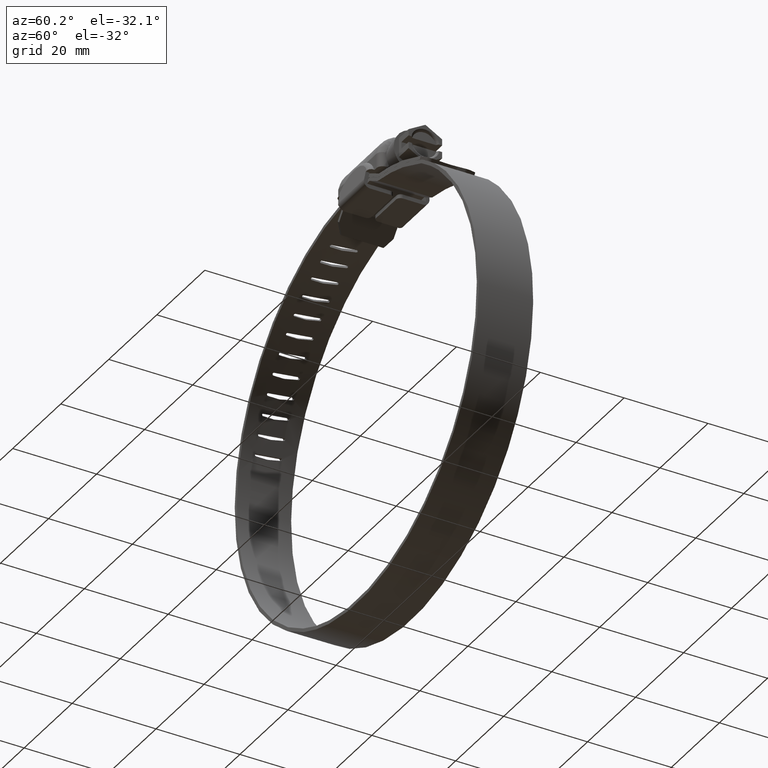
[diagram: clean part render]
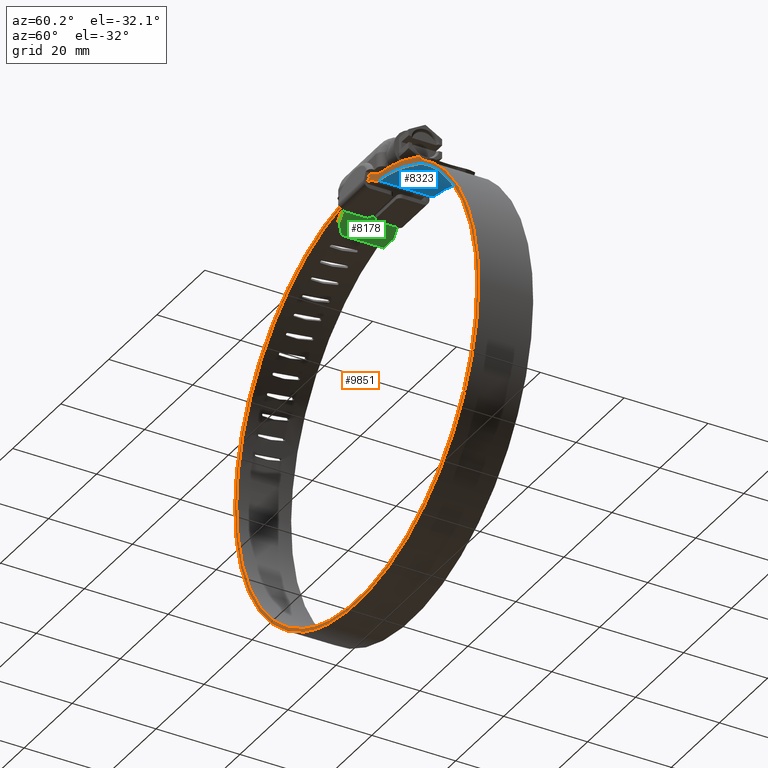
[diagram: same view with three faces highlighted in distinct colors, each labeled with its STEP entity id]
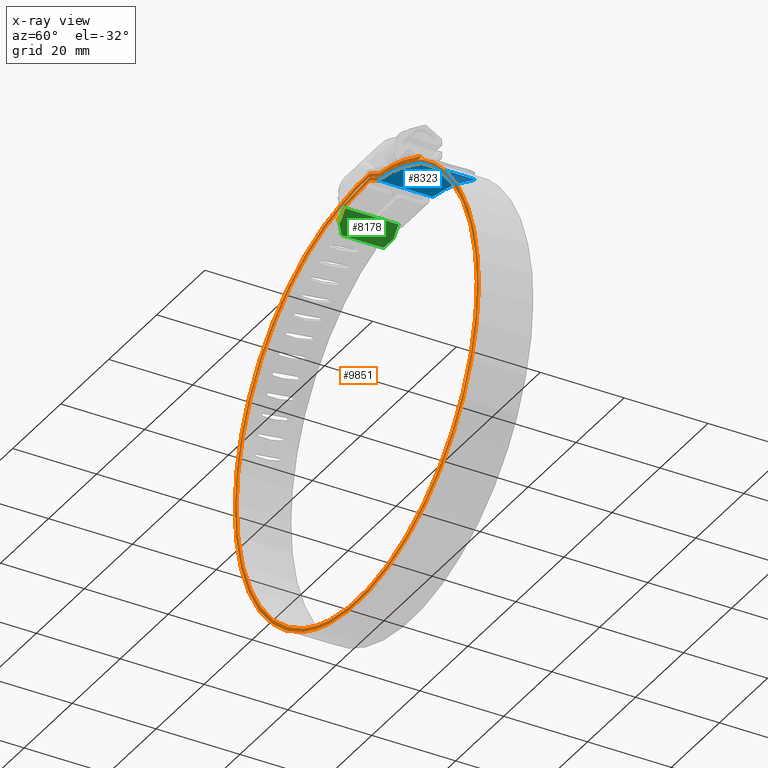
[diagram: x-ray of the same camera — body ghosted, the three highlighted faces saturated]
A machine part, auxiliary view with three faces highlighted in distinct colors.
The next image is the same camera in x-ray (body ghosted, the three faces saturated) — at least one of them is partly hidden behind the body in this view.
Their STEP definitions:

[orange] entity #9851 — the highlighted face is a freeform B-spline surface patch.
#7268=CARTESIAN_POINT('',(-7.334361322686360,-6.499999999999890,7.958638598955481));
#7269=VERTEX_POINT('',#7268);
#7277=CARTESIAN_POINT('',(-7.943454736817850,-6.499999999999890,8.477295723520120));
#7278=VERTEX_POINT('',#7277);
#7279=CARTESIAN_POINT('',(-7.943454736817850,-6.499999999999890,8.477295723520120));
#7280=CARTESIAN_POINT('',(-7.334361322686360,-6.499999999999890,7.958638598955481));
#7281=QUASI_UNIFORM_CURVE('',1,(#7279,#7280),.UNSPECIFIED.,.F.,.U.);
#7282=EDGE_CURVE('',#7278,#7269,#7281,.T.);
#7325=CARTESIAN_POINT('',(-5.356550883366190,-6.499999999999840,11.355693600394540));
#7326=VERTEX_POINT('',#7325);
#7327=CARTESIAN_POINT('',(-11.433543745048580,-6.499999999999840,-87.031741546934754));
#7328=VERTEX_POINT('',#7327);
#7329=CARTESIAN_POINT('',(-5.356550883366190,-6.499999999999840,11.355693600394540));
#7330=CARTESIAN_POINT('',(-8.713882839243222,-6.499999999999856,10.994480264240799));
#7331=CARTESIAN_POINT('',(-13.290419370575821,-6.499999999999813,10.024723035713460));
#7332=CARTESIAN_POINT('',(-19.642979975680412,-6.499999999999867,7.718247064048651));
#7333=CARTESIAN_POINT('',(-23.760786343206320,-6.499999999999805,5.731339592327762));
#7334=CARTESIAN_POINT('',(-28.203433921304921,-6.499999999999908,3.018946326603698));
#7335=CARTESIAN_POINT('',(-31.939426954408159,-6.499999999999972,0.230266680269202));
#7336=CARTESIAN_POINT('',(-35.833673077280800,-6.499999999999576,-3.363217872852138));
#7337=CARTESIAN_POINT('',(-39.103783070472090,-6.499999999999893,-7.059913898733560));
#7338=CARTESIAN_POINT('',(-42.035383023269262,-6.499999999999894,-11.140903212886860));
#7339=CARTESIAN_POINT('',(-44.885271492323959,-6.499999999999843,-16.036955071296099));
#7340=CARTESIAN_POINT('',(-47.223072147377763,-6.499999999999702,-21.506475894605899));
#7341=CARTESIAN_POINT('',(-48.812697499346861,-6.500000000000101,-27.135846062817770));
#7342=CARTESIAN_POINT('',(-49.634844522927217,-6.499999999999472,-31.814862216313319));
#7343=CARTESIAN_POINT('',(-50.075947177619803,-6.500000000001028,-36.910740569534873));
#7344=CARTESIAN_POINT('',(-49.974928940176142,-6.499999999999287,-41.848403097226623));
#7345=CARTESIAN_POINT('',(-49.256429735018699,-6.500000000000410,-47.465617821899592));
#7346=CARTESIAN_POINT('',(-48.019850455095913,-6.499999999998696,-52.717074699740607));
#7347=CARTESIAN_POINT('',(-45.783899562042741,-6.500000000000504,-58.810055474619993));
#7348=CARTESIAN_POINT('',(-42.978064873340919,-6.499999999999480,-64.158455978303195));
#7349=CARTESIAN_POINT('',(-39.541363394989489,-6.499999999998911,-69.113966046490646));
#7350=CARTESIAN_POINT('',(-36.431667670549622,-6.500000000000353,-72.709085378288492));
#7351=CARTESIAN_POINT('',(-32.279922725291037,-6.499999999999685,-76.691721192309146));
#7352=CARTESIAN_POINT('',(-27.905783482012609,-6.499999999999838,-80.014232178508408));
#7353=CARTESIAN_POINT('',(-23.071247118729492,-6.499999999999903,-82.787983159023142));
#7354=CARTESIAN_POINT('',(-17.932236464584939,-6.499999999999787,-85.165541583372246));
#7355=CARTESIAN_POINT('',(-14.098895226928329,-6.500000000000076,-86.405909061444106));
#7356=CARTESIAN_POINT('',(-11.433543745048580,-6.499999999999840,-87.031741546934754));
#7357=B_SPLINE_CURVE_WITH_KNOTS('',3,(#7329,#7330,#7331,#7332,#7333,#7334,#7335,#7336,#7337,#7338,#7339,#7340,#7341,#7342,#7343,#7344,#7345,#7346,#7347,#7348,#7349,#7350,#7351,#7352,#7353,#7354,#7355,#7356),.UNSPECIFIED.,.F.,.U.,(4,1,1,1,1,1,1,1,1,1,1,1,1,1,1,1,1,1,1,1,1,1,1,1,1,4),(0.000000027769460,10.129968230748320,13.962941021158640,20.259998577409799,23.819195817942958,29.568656988016372,34.222986050270833,39.698676335967903,44.353009476555030,49.281129095916100,56.673290040869666,62.148972049878921,66.803336927666990,70.909985302517384,77.480823468240203,81.587547667678081,87.884586800471169,93.634063614031476,101.026246128898190,105.954367145735200,111.703843506642700,115.263036497146700,123.202754198719400,128.130870291556700,131.963878082967200,140.177349242358300),.UNSPECIFIED.);
#7358=EDGE_CURVE('',#7326,#7328,#7357,.T.);
#7360=CARTESIAN_POINT('',(26.929440054028252,-6.499999999999840,3.771885644618750));
#7361=VERTEX_POINT('',#7360);
#7362=CARTESIAN_POINT('',(-11.433543745048580,-6.499999999999840,-87.031741546934754));
#7363=CARTESIAN_POINT('',(-9.301329221831443,-6.499999999999832,-87.532667878385098));
#7364=CARTESIAN_POINT('',(-5.963331921636321,-6.499999999999847,-88.088367932353933));
#7365=CARTESIAN_POINT('',(-0.313044162238781,-6.499999999999885,-88.448852452105726));
#7366=CARTESIAN_POINT('',(5.262393088906730,-6.499999999999631,-88.223895774379429));
#7367=CARTESIAN_POINT('',(11.479092461050140,-6.500000000000235,-87.145517484984069));
#7368=CARTESIAN_POINT('',(16.468696954745820,-6.499999999999448,-85.644462861703374));
#7369=CARTESIAN_POINT('',(21.292294760455441,-6.500000000000089,-83.688170867475165));
#7370=CARTESIAN_POINT('',(25.501433674906501,-6.499999999999820,-81.476134170502647));
#7371=CARTESIAN_POINT('',(30.129697564126580,-6.499999999999695,-78.372957958879724));
#7372=CARTESIAN_POINT('',(33.852405725563003,-6.499999999999935,-75.271101500207280));
#7373=CARTESIAN_POINT('',(37.494627620930352,-6.499999999999762,-71.550946863626308));
#7374=CARTESIAN_POINT('',(40.823817438219017,-6.500000000000228,-67.425664284846889));
#7375=CARTESIAN_POINT('',(43.598055549757262,-6.499999999998841,-63.013102702859278));
#7376=CARTESIAN_POINT('',(46.030562188010137,-6.500000000001399,-58.102930702041029));
#7377=CARTESIAN_POINT('',(48.117135710794152,-6.499999999998905,-52.537482971842387));
#7378=CARTESIAN_POINT('',(49.489415278463127,-6.500000000000198,-46.372864954604552));
#7379=CARTESIAN_POINT('',(50.058442987594290,-6.499999999999773,-40.277410882897847));
#7380=CARTESIAN_POINT('',(49.992182135362960,-6.499999999999844,-35.433019713584990));
#7381=CARTESIAN_POINT('',(49.443260757997933,-6.499999999999840,-30.440031192590020));
#7382=CARTESIAN_POINT('',(48.505380756769192,-6.499999999999838,-25.874050293297820));
#7383=CARTESIAN_POINT('',(46.892465473064327,-6.499999999999846,-20.730757858121919));
#7384=CARTESIAN_POINT('',(45.140506014265092,-6.499999999999830,-16.707143115271599));
#7385=CARTESIAN_POINT('',(42.753064397402213,-6.499999999999862,-12.290167892979611));
#7386=CARTESIAN_POINT('',(40.275100517016142,-6.499999999999819,-8.556116447777963));
#7387=CARTESIAN_POINT('',(37.056083982229467,-6.500000000000065,-4.698608840112781));
#7388=CARTESIAN_POINT('',(32.943901013423492,-6.500000000000711,-0.543920685421595));
#7389=CARTESIAN_POINT('',(29.467148724676711,-6.499999999996029,2.150141382542315));
#7390=CARTESIAN_POINT('',(26.929440054028252,-6.499999999999840,3.771885644618750));
#7391=B_SPLINE_CURVE_WITH_KNOTS('',3,(#7362,#7363,#7364,#7365,#7366,#7367,#7368,#7369,#7370,#7371,#7372,#7373,#7374,#7375,#7376,#7377,#7378,#7379,#7380,#7381,#7382,#7383,#7384,#7385,#7386,#7387,#7388,#7389,#7390),.UNSPECIFIED.,.F.,.U.,(4,1,1,1,1,1,1,1,1,1,1,1,1,1,1,1,1,1,1,1,1,1,1,1,1,1,4),(0.000000027301468,6.570792633065253,10.129968230311221,16.974559990290292,23.271604756816590,29.021082981511871,32.580279641600811,38.877321866898207,43.257876538685757,49.281129095599312,53.387898832690581,58.863543024345013,65.160568328610196,68.993582683635864,75.290507680152601,82.956473136452189,87.884586800281554,93.634063613864555,97.467049223426898,102.942738071042600,107.597073172932500,113.620335346679300,116.084395019503400,122.655215969101800,127.035776719502710,131.142487713344390,140.177349242360210),.UNSPECIFIED.);
#7392=EDGE_CURVE('',#7328,#7361,#7391,.T.);
#7620=CARTESIAN_POINT('',(-5.266920234023621,-6.499999999999840,11.368534438898600));
#7621=VERTEX_POINT('',#7620);
#7622=CARTESIAN_POINT('',(-5.266920234023621,-6.499999999999840,11.368534438898600));
#7623=CARTESIAN_POINT('',(-5.356550883366190,-6.499999999999840,11.355693600394540));
#7624=QUASI_UNIFORM_CURVE('',1,(#7622,#7623),.UNSPECIFIED.,.F.,.U.);
#7625=EDGE_CURVE('',#7621,#7326,#7624,.T.);
#7669=CARTESIAN_POINT('',(-11.606481283638001,-6.499999999999840,-87.812892263029227));
#7670=VERTEX_POINT('',#7669);
#7671=CARTESIAN_POINT('',(27.326681880665799,-6.499999999999840,4.467418103414601));
#7672=VERTEX_POINT('',#7671);
#7673=CARTESIAN_POINT('',(-11.606481283638001,-6.499999999999840,-87.812892263029227));
#7674=CARTESIAN_POINT('',(-9.349312825382866,-6.499999999999835,-88.342716848310815));
#7675=CARTESIAN_POINT('',(-5.220993135475740,-6.499999999999851,-89.017448490778321));
#7676=CARTESIAN_POINT('',(0.347580100323549,-6.499999999999838,-89.233732693111492));
#7677=CARTESIAN_POINT('',(5.722332943251224,-6.499999999999869,-88.926942571837586));
#7678=CARTESIAN_POINT('',(11.133937070338609,-6.499999999999758,-88.047655545363057));
#7679=CARTESIAN_POINT('',(16.309616370398761,-6.499999999999876,-86.550489070152551));
#7680=CARTESIAN_POINT('',(21.227420877155222,-6.499999999999852,-84.600987924929726));
#7681=CARTESIAN_POINT('',(25.521627326388789,-6.499999999999819,-82.387179473955626));
#7682=CARTESIAN_POINT('',(30.491001062558059,-6.499999999999862,-79.131044085165385));
#7683=CARTESIAN_POINT('',(34.703965873230473,-6.499999999999826,-75.617867561192995));
#7684=CARTESIAN_POINT('',(38.916306581950913,-6.499999999999852,-71.167827635006461));
#7685=CARTESIAN_POINT('',(42.339739913973737,-6.499999999999813,-66.649962797655149));
#7686=CARTESIAN_POINT('',(45.053860326633327,-6.499999999999897,-61.995680369695698));
#7687=CARTESIAN_POINT('',(47.113744619164187,-6.499999999999663,-57.528919198120363));
#7688=CARTESIAN_POINT('',(49.089461735863452,-6.499999999999872,-52.022918863971498));
#7689=CARTESIAN_POINT('',(50.566113303416657,-6.500000000000006,-45.105047605949352));
#7690=CARTESIAN_POINT('',(50.929496599042388,-6.499999999999486,-38.046805414763710));
#7691=CARTESIAN_POINT('',(50.523295263090958,-6.500000000000383,-32.397316369625997));
#7692=CARTESIAN_POINT('',(49.731057396975253,-6.499999999999419,-27.635618947836161));
#7693=CARTESIAN_POINT('',(48.570291134569779,-6.499999999999922,-23.236357614348840));
#7694=CARTESIAN_POINT('',(46.764415961887757,-6.499999999999819,-18.263397160519009));
#7695=CARTESIAN_POINT('',(44.558213839468984,-6.499999999999842,-13.755493560998611));
#7696=CARTESIAN_POINT('',(41.788566843237973,-6.499999999999783,-9.356978783855434));
#7697=CARTESIAN_POINT('',(38.475591053639427,-6.500000000000144,-4.994768719778648));
#7698=CARTESIAN_POINT('',(33.749503555696471,-6.499999999999016,-0.121489927362456));
#7699=CARTESIAN_POINT('',(29.593979178739779,-6.500000000000753,3.020833871886091));
#7700=CARTESIAN_POINT('',(27.326681880665799,-6.499999999999840,4.467418103414601));
#7701=B_SPLINE_CURVE_WITH_KNOTS('',3,(#7673,#7674,#7675,#7676,#7677,#7678,#7679,#7680,#7681,#7682,#7683,#7684,#7685,#7686,#7687,#7688,#7689,#7690,#7691,#7692,#7693,#7694,#7695,#7696,#7697,#7698,#7699,#7700),.UNSPECIFIED.,.F.,.U.,(4,1,1,1,1,1,1,1,1,1,1,1,1,1,1,1,1,1,1,1,1,1,1,1,1,4),(0.000000020596644,6.955547198645661,12.519948934361681,16.693293879074400,23.092432482623241,28.935108736325361,32.830228427387880,38.951126878221253,43.402694838844681,50.636494946803452,55.366281733475446,61.765359908231432,67.608089877640253,71.503119282600721,76.511093515144893,85.135984813472589,92.647999589482083,97.656009234924994,102.107573445930900,107.115587532974400,111.288929216896090,117.966284186111490,122.139620818016000,126.869397096906000,134.381433040734290,142.449817740788400),.UNSPECIFIED.);
#7702=EDGE_CURVE('',#7670,#7672,#7701,.T.);
#7704=CARTESIAN_POINT('',(-5.423006412645550,-6.499999999999840,12.153159951746900));
#7705=VERTEX_POINT('',#7704);
#7706=CARTESIAN_POINT('',(-5.423006412645550,-6.499999999999840,12.153159951746900));
#7707=CARTESIAN_POINT('',(-7.728287628126036,-6.499999999999854,11.905755357828410));
#7708=CARTESIAN_POINT('',(-11.481037521204289,-6.499999999999806,11.240448206796190));
#7709=CARTESIAN_POINT('',(-16.643864408717910,-6.499999999999874,9.712750163056615));
#7710=CARTESIAN_POINT('',(-21.303273655671799,-6.499999999999822,7.862257056572483));
#7711=CARTESIAN_POINT('',(-25.665460051133721,-6.499999999999854,5.579488550040074));
#7712=CARTESIAN_POINT('',(-29.700864809885299,-6.499999999999779,2.931551652662741));
#7713=CARTESIAN_POINT('',(-32.986545884540803,-6.500000000000163,0.351926730568377));
#7714=CARTESIAN_POINT('',(-36.933573826080860,-6.499999999999307,-3.308276032790913));
#7715=CARTESIAN_POINT('',(-40.562980423668883,-6.500000000000079,-7.547691837420745));
#7716=CARTESIAN_POINT('',(-44.187294209175541,-6.499999999999800,-13.054696767376370));
#7717=CARTESIAN_POINT('',(-46.851535261072819,-6.499999999999848,-18.374128213877508));
#7718=CARTESIAN_POINT('',(-48.855721847954818,-6.499999999999819,-24.069928607061829));
#7719=CARTESIAN_POINT('',(-50.119617201013909,-6.499999999999861,-29.496656969122110));
#7720=CARTESIAN_POINT('',(-50.741373236090602,-6.499999999999857,-34.567038202226833));
#7721=CARTESIAN_POINT('',(-50.871969080670937,-6.499999999999915,-40.135293690228110));
#7722=CARTESIAN_POINT('',(-50.408432745779557,-6.499999999999820,-45.505892295057372));
#7723=CARTESIAN_POINT('',(-49.314031895940033,-6.499999999999838,-50.873821950600622));
#7724=CARTESIAN_POINT('',(-47.792758204279167,-6.499999999999845,-55.845382063700349));
#7725=CARTESIAN_POINT('',(-45.907153591107729,-6.499999999999838,-60.292639977181551));
#7726=CARTESIAN_POINT('',(-43.120171735084753,-6.499999999999846,-65.432676029856964));
#7727=CARTESIAN_POINT('',(-39.326979510749112,-6.499999999999838,-70.838605121178716));
#7728=CARTESIAN_POINT('',(-34.285920768838963,-6.499999999999838,-76.058430063272326));
#7729=CARTESIAN_POINT('',(-28.953394217971219,-6.499999999999843,-80.247698252711672));
#7730=CARTESIAN_POINT('',(-24.107426630629242,-6.499999999999841,-83.188378451643686));
#7731=CARTESIAN_POINT('',(-18.300366281258292,-6.499999999999840,-85.893080983417875));
#7732=CARTESIAN_POINT('',(-14.224867414599540,-6.499999999999849,-87.198621031380227));
#7733=CARTESIAN_POINT('',(-11.606481283638001,-6.499999999999840,-87.812892263029227));
#7734=B_SPLINE_CURVE_WITH_KNOTS('',3,(#7706,#7707,#7708,#7709,#7710,#7711,#7712,#7713,#7714,#7715,#7716,#7717,#7718,#7719,#7720,#7721,#7722,#7723,#7724,#7725,#7726,#7727,#7728,#7729,#7730,#7731,#7732,#7733),.UNSPECIFIED.,.F.,.U.,(4,1,1,1,1,1,1,1,1,1,1,1,1,1,1,1,1,1,1,1,1,1,1,1,1,4),(0.000000020708711,6.955547227045315,11.407093230229890,16.136848556302130,21.979536873385200,26.152875537318689,30.604442951698498,34.499565029835892,42.289808490832527,47.297806868500501,54.253385445075182,60.096076526686304,65.382252202334016,70.946697345250897,75.398213619160458,82.075575757247606,87.083564072513695,91.813325532143139,97.656009632055344,101.551130563432390,109.341370792820300,117.409826345396100,123.252513640938200,129.651622352701910,134.381433587180510,142.449818320034210),.UNSPECIFIED.);
#7735=EDGE_CURVE('',#7705,#7670,#7734,.T.);
#7966=CARTESIAN_POINT('',(9.164813276859322,-6.499999999999840,10.079748274898900));
#7967=VERTEX_POINT('',#7966);
#7968=CARTESIAN_POINT('',(27.326681880665799,-6.499999999999840,4.467418103414601));
#7969=CARTESIAN_POINT('',(25.641284361108340,-6.499999999999852,5.323226737205626));
#7970=CARTESIAN_POINT('',(22.274912868158520,-6.499999999999843,6.823782105869328));
#7971=CARTESIAN_POINT('',(16.226094752886741,-6.499999999999827,8.834883615086540));
#7972=CARTESIAN_POINT('',(11.828435909710880,-6.499999999999891,9.732786639828968));
#7973=CARTESIAN_POINT('',(9.164813276859322,-6.499999999999840,10.079748274898900));
#7974=B_SPLINE_CURVE_WITH_KNOTS('',3,(#7968,#7969,#7970,#7971,#7972,#7973),.UNSPECIFIED.,.F.,.U.,(4,1,1,4),(1.684569E-009,5.670695054989274,11.042921741823781,19.101282260619620),.UNSPECIFIED.);
#7975=EDGE_CURVE('',#7672,#7967,#7974,.T.);
#8011=CARTESIAN_POINT('',(8.765903960747751,-6.499999999999840,10.222200192353680));
#8012=VERTEX_POINT('',#8011);
#8013=CARTESIAN_POINT('',(8.765903960747751,-6.499999999999840,10.222200192353680));
#8014=CARTESIAN_POINT('',(8.886681112317687,-6.499999999999835,10.146976135920880));
#8015=CARTESIAN_POINT('',(9.023693021409253,-6.499999999999847,10.098005274722221));
#8016=CARTESIAN_POINT('',(9.164813276859322,-6.499999999999840,10.079748274898900));
#8017=B_SPLINE_CURVE_WITH_KNOTS('',3,(#8013,#8014,#8015,#8016),.UNSPECIFIED.,.F.,.U.,(4,4),(0.000000020842679,0.426826302672416),.UNSPECIFIED.);
#8018=EDGE_CURVE('',#8012,#7967,#8017,.T.);
#8052=CARTESIAN_POINT('',(5.506469036140570,-6.499999999999840,12.049221955669839));
#8053=VERTEX_POINT('',#8052);
#8054=CARTESIAN_POINT('',(8.765903960747751,-6.499999999999840,10.222200192353680));
#8055=CARTESIAN_POINT('',(7.707891357520809,-6.499999999999833,10.880232186048030));
#8056=CARTESIAN_POINT('',(6.619914971870712,-6.499999999999844,11.490082829343301));
#8057=CARTESIAN_POINT('',(5.506469036140570,-6.499999999999840,12.049221955669839));
#8058=B_SPLINE_CURVE_WITH_KNOTS('',3,(#8054,#8055,#8056,#8057),.UNSPECIFIED.,.F.,.U.,(4,4),(1.478178E-010,3.737860670412379),.UNSPECIFIED.);
#8059=EDGE_CURVE('',#8012,#8053,#8058,.T.);
#8084=CARTESIAN_POINT('',(-5.669397048005610,-6.499999999999840,11.147872287513540));
#8085=VERTEX_POINT('',#8084);
#8086=CARTESIAN_POINT('',(-5.669397048005610,-6.499999999999840,11.147872287513540));
#8087=CARTESIAN_POINT('',(5.506469036140570,-6.499999999999840,12.049221955669839));
#8088=QUASI_UNIFORM_CURVE('',1,(#8086,#8087),.UNSPECIFIED.,.F.,.U.);
#8089=EDGE_CURVE('',#8085,#8053,#8088,.T.);
#8124=CARTESIAN_POINT('',(-7.943454736817850,-6.499999999999890,8.477295723520120));
#8125=CARTESIAN_POINT('',(-5.669397048005610,-6.499999999999840,11.147872287513540));
#8126=QUASI_UNIFORM_CURVE('',1,(#8124,#8125),.UNSPECIFIED.,.F.,.U.);
#8127=EDGE_CURVE('',#7278,#8085,#8126,.T.);
#8163=CARTESIAN_POINT('',(-5.274999696380090,-6.499999999999840,10.377083356561160));
#8164=VERTEX_POINT('',#8163);
#8170=CARTESIAN_POINT('',(-5.274999696380090,-6.499999999999840,10.377083356561160));
#8171=CARTESIAN_POINT('',(-7.334361322686360,-6.499999999999890,7.958638598955481));
#8172=QUASI_UNIFORM_CURVE('',1,(#8170,#8171),.UNSPECIFIED.,.F.,.U.);
#8173=EDGE_CURVE('',#8164,#7269,#8172,.T.);
#8184=CARTESIAN_POINT('',(5.346385360800090,-6.499999999999840,11.233713629708181));
#8185=VERTEX_POINT('',#8184);
#8186=CARTESIAN_POINT('',(5.346385360800090,-6.499999999999840,11.233713629708181));
#8187=CARTESIAN_POINT('',(-5.274999696380090,-6.499999999999840,10.377083356561160));
#8188=QUASI_UNIFORM_CURVE('',1,(#8186,#8187),.UNSPECIFIED.,.F.,.U.);
#8189=EDGE_CURVE('',#8185,#8164,#8188,.T.);
#8221=CARTESIAN_POINT('',(8.343400448313572,-6.499999999999840,9.542869986554479));
#8222=VERTEX_POINT('',#8221);
#8223=CARTESIAN_POINT('',(8.343400448313572,-6.499999999999840,9.542869986554479));
#8224=CARTESIAN_POINT('',(7.369093418488116,-6.499999999999843,10.148839349511340));
#8225=CARTESIAN_POINT('',(6.368871837088634,-6.499999999999830,10.713142638866969));
#8226=CARTESIAN_POINT('',(5.346385360800090,-6.499999999999840,11.233713629708181));
#8227=B_SPLINE_CURVE_WITH_KNOTS('',3,(#8223,#8224,#8225,#8226),.UNSPECIFIED.,.F.,.U.,(4,4),(1.765317E-010,3.442134641130731),.UNSPECIFIED.);
#8228=EDGE_CURVE('',#8222,#8185,#8227,.T.);
#8262=CARTESIAN_POINT('',(9.061435898346790,-6.499999999999840,9.286455694817700));
#8263=VERTEX_POINT('',#8262);
#8264=CARTESIAN_POINT('',(8.343400448313572,-6.499999999999840,9.542869986554479));
#8265=CARTESIAN_POINT('',(8.560798202825005,-6.499999999999844,9.407465595866135));
#8266=CARTESIAN_POINT('',(8.807420096725405,-6.499999999999838,9.319316641535449));
#8267=CARTESIAN_POINT('',(9.061435898346790,-6.499999999999840,9.286455694817700));
#8268=B_SPLINE_CURVE_WITH_KNOTS('',3,(#8264,#8265,#8266,#8267),.UNSPECIFIED.,.F.,.U.,(4,4),(0.000000014639583,0.768286469268896),.UNSPECIFIED.);
#8269=EDGE_CURVE('',#8222,#8263,#8268,.T.);
#8303=CARTESIAN_POINT('',(26.929440054028252,-6.499999999999840,3.771885644618750));
#8304=CARTESIAN_POINT('',(24.223520126776059,-6.499999999999836,5.143677534865209));
#8305=CARTESIAN_POINT('',(18.403428231084810,-6.499999999999854,7.514472156581448));
#8306=CARTESIAN_POINT('',(12.263899119534051,-6.499999999999830,8.869412584930405));
#8307=CARTESIAN_POINT('',(9.061435898346790,-6.499999999999840,9.286455694817700));
#8308=B_SPLINE_CURVE_WITH_KNOTS('',3,(#8303,#8304,#8305,#8306,#8307),.UNSPECIFIED.,.F.,.U.,(4,1,4),(1.644295E-009,9.101303198823494,18.789778006286539),.UNSPECIFIED.);
#8309=EDGE_CURVE('',#7361,#8263,#8308,.T.);
#9249=CARTESIAN_POINT('',(26.215040247798299,-6.499999999999840,5.027599416484560));
#9250=VERTEX_POINT('',#9249);
#9257=CARTESIAN_POINT('',(26.647036279728852,-6.499999999999840,5.707525390578760));
#9258=VERTEX_POINT('',#9257);
#9264=CARTESIAN_POINT('',(26.647036279728852,-6.499999999999840,5.707525390578760));
#9265=CARTESIAN_POINT('',(26.215040247798299,-6.499999999999840,5.027599416484560));
#9266=QUASI_UNIFORM_CURVE('',1,(#9264,#9265),.UNSPECIFIED.,.F.,.U.);
#9267=EDGE_CURVE('',#9258,#9250,#9266,.T.);
#9611=CARTESIAN_POINT('',(9.228634166057621,-6.499999999999840,10.888265127510341));
#9612=VERTEX_POINT('',#9611);
#9613=CARTESIAN_POINT('',(5.493858824085840,-6.499999999999840,12.959599087036199));
#9614=VERTEX_POINT('',#9613);
#9615=CARTESIAN_POINT('',(9.228634166057621,-6.499999999999840,10.888265127510341));
#9616=CARTESIAN_POINT('',(8.020013619100814,-6.499999999999828,11.641621401787329));
#9617=CARTESIAN_POINT('',(6.772929331197060,-6.499999999999869,12.333268516502340));
#9618=CARTESIAN_POINT('',(5.493858824085840,-6.499999999999840,12.959599087036199));
#9619=B_SPLINE_CURVE_WITH_KNOTS('',3,(#9615,#9616,#9617,#9618),.UNSPECIFIED.,.F.,.U.,(4,4),(1.288392E-010,4.272570476917484),.UNSPECIFIED.);
#9620=EDGE_CURVE('',#9612,#9614,#9619,.T.);
#9660=CARTESIAN_POINT('',(5.493858824085840,-6.499999999999840,12.959599087036199));
#9661=CARTESIAN_POINT('',(3.895386872202389,-6.499999999999822,13.038442403006110));
#9662=CARTESIAN_POINT('',(0.232035308466119,-6.499999999999846,13.021744091132749));
#9663=CARTESIAN_POINT('',(-3.405040540081400,-6.499999999999837,12.555468977404340));
#9664=CARTESIAN_POINT('',(-5.423006412645550,-6.499999999999840,12.153159951746900));
#9665=B_SPLINE_CURVE_WITH_KNOTS('',3,(#9660,#9661,#9662,#9663,#9664),.UNSPECIFIED.,.F.,.U.,(4,1,4),(1.217824E-009,4.801247411111465,10.974269728641870),.UNSPECIFIED.);
#9666=EDGE_CURVE('',#9614,#7705,#9665,.T.);
#9695=CARTESIAN_POINT('',(5.289821340970359,-6.499999999999840,12.168377067517440));
#9696=VERTEX_POINT('',#9695);
#9697=CARTESIAN_POINT('',(5.289821340970359,-6.499999999999840,12.168377067517440));
#9698=CARTESIAN_POINT('',(3.633266966838915,-6.499999999999820,12.243848538098661));
#9699=CARTESIAN_POINT('',(0.090144192633243,-6.499999999999897,12.203836681216680));
#9700=CARTESIAN_POINT('',(-3.423814875272687,-6.499999999999800,11.735976540626220));
#9701=CARTESIAN_POINT('',(-5.266920234023621,-6.499999999999840,11.368534438898600));
#9702=B_SPLINE_CURVE_WITH_KNOTS('',3,(#9697,#9698,#9699,#9700,#9701),.UNSPECIFIED.,.F.,.U.,(4,1,4),(1.106999E-009,4.974816994873237,10.612936962155040),.UNSPECIFIED.);
#9703=EDGE_CURVE('',#9696,#7621,#9702,.T.);
#9738=CARTESIAN_POINT('',(8.805462442380511,-6.499999999999840,10.209350042775780));
#9739=VERTEX_POINT('',#9738);
#9740=CARTESIAN_POINT('',(8.805462442380511,-6.499999999999840,10.209350042775780));
#9741=CARTESIAN_POINT('',(7.666527465925428,-6.499999999999833,10.919273191708429));
#9742=CARTESIAN_POINT('',(6.492766676936824,-6.499999999999845,11.573324546982651));
#9743=CARTESIAN_POINT('',(5.289821340970359,-6.499999999999840,12.168377067517440));
#9744=B_SPLINE_CURVE_WITH_KNOTS('',3,(#9740,#9741,#9742,#9743),.UNSPECIFIED.,.F.,.U.,(4,4),(2.141443E-010,4.026231539549088),.UNSPECIFIED.);
#9745=EDGE_CURVE('',#9739,#9696,#9744,.T.);
#9779=CARTESIAN_POINT('',(9.125830612688770,-6.499999999999840,10.094897980848440));
#9780=VERTEX_POINT('',#9779);
#9781=CARTESIAN_POINT('',(8.805462442380511,-6.499999999999840,10.209350042775780));
#9782=CARTESIAN_POINT('',(8.905087112870284,-6.499999999999832,10.154117521758799));
#9783=CARTESIAN_POINT('',(9.013773514813176,-6.499999999999847,10.115316570757381));
#9784=CARTESIAN_POINT('',(9.125830612688770,-6.499999999999840,10.094897980848440));
#9785=B_SPLINE_CURVE_WITH_KNOTS('',3,(#9781,#9782,#9783,#9784),.UNSPECIFIED.,.F.,.U.,(4,4),(0.000000014591949,0.341726428145906),.UNSPECIFIED.);
#9786=EDGE_CURVE('',#9739,#9780,#9785,.T.);
#9806=CARTESIAN_POINT('',(-55.847326618834707,-6.499999999999890,18.114723001531349));
#9807=CARTESIAN_POINT('',(55.856470624961460,-6.499999999999890,18.114723001531349));
#9808=CARTESIAN_POINT('',(-55.847326618834707,-6.499999999999890,-94.209318986634713));
#9809=CARTESIAN_POINT('',(55.856470624961460,-6.499999999999890,-94.209318986634713));
#9810=B_SPLINE_SURFACE_WITH_KNOTS('',1,1,((#9806,#9808),(#9807,#9809)),.UNSPECIFIED.,.F.,.F.,.U.,(2,2),(2,2),(0.0,111.703797243796200),(0.0,112.324041988166100),.UNSPECIFIED.);
#9811=ORIENTED_EDGE('',*,*,#8127,.F.);
#9812=ORIENTED_EDGE('',*,*,#7282,.T.);
#9813=ORIENTED_EDGE('',*,*,#8173,.F.);
#9814=ORIENTED_EDGE('',*,*,#8189,.F.);
#9815=ORIENTED_EDGE('',*,*,#8228,.F.);
#9816=ORIENTED_EDGE('',*,*,#8269,.T.);
#9817=ORIENTED_EDGE('',*,*,#8309,.F.);
#9818=ORIENTED_EDGE('',*,*,#7392,.F.);
#9819=ORIENTED_EDGE('',*,*,#7358,.F.);
#9820=ORIENTED_EDGE('',*,*,#7625,.F.);
#9821=ORIENTED_EDGE('',*,*,#9703,.F.);
#9822=ORIENTED_EDGE('',*,*,#9745,.F.);
#9823=ORIENTED_EDGE('',*,*,#9786,.T.);
#9824=CARTESIAN_POINT('',(26.215040247798299,-6.499999999999840,5.027599416484560));
#9825=CARTESIAN_POINT('',(23.609727226022201,-6.499999999999827,6.278780720958547));
#9826=CARTESIAN_POINT('',(18.031012717056331,-6.499999999999893,8.445141757391371));
#9827=CARTESIAN_POINT('',(12.176988643211910,-6.499999999999809,9.699773482395397));
#9828=CARTESIAN_POINT('',(9.125830612688770,-6.499999999999840,10.094897980848440));
#9829=B_SPLINE_CURVE_WITH_KNOTS('',3,(#9824,#9825,#9826,#9827,#9828),.UNSPECIFIED.,.F.,.U.,(4,1,4),(1.514653E-009,8.670505685911282,17.900388757750569),.UNSPECIFIED.);
#9830=EDGE_CURVE('',#9250,#9780,#9829,.T.);
#9831=ORIENTED_EDGE('',*,*,#9830,.F.);
#9832=ORIENTED_EDGE('',*,*,#9267,.F.);
#9833=CARTESIAN_POINT('',(26.647036279728852,-6.499999999999840,5.707525390578760));
#9834=CARTESIAN_POINT('',(23.479267958292670,-6.499999999999852,7.235586658442302));
#9835=CARTESIAN_POINT('',(17.753961902244640,-6.499999999999824,9.368207824054812));
#9836=CARTESIAN_POINT('',(11.773850014246930,-6.499999999999859,10.558549689553130));
#9837=CARTESIAN_POINT('',(9.228634166057621,-6.499999999999840,10.888265127510341));
#9838=B_SPLINE_CURVE_WITH_KNOTS('',3,(#9833,#9834,#9835,#9836,#9837),.UNSPECIFIED.,.F.,.U.,(4,1,4),(1.577089E-009,10.551092256829770,18.250546029429088),.UNSPECIFIED.);
#9839=EDGE_CURVE('',#9258,#9612,#9838,.T.);
#9840=ORIENTED_EDGE('',*,*,#9839,.T.);
#9841=ORIENTED_EDGE('',*,*,#9620,.T.);
#9842=ORIENTED_EDGE('',*,*,#9666,.T.);
#9843=ORIENTED_EDGE('',*,*,#7735,.T.);
#9844=ORIENTED_EDGE('',*,*,#7702,.T.);
#9845=ORIENTED_EDGE('',*,*,#7975,.T.);
#9846=ORIENTED_EDGE('',*,*,#8018,.F.);
#9847=ORIENTED_EDGE('',*,*,#8059,.T.);
#9848=ORIENTED_EDGE('',*,*,#8089,.F.);
#9849=EDGE_LOOP('',(#9811,#9812,#9813,#9814,#9815,#9816,#9817,#9818,#9819,#9820,#9821,#9822,#9823,#9831,#9832,#9840,#9841,#9842,#9843,#9844,#9845,#9846,#9847,#9848));
#9850=FACE_OUTER_BOUND('',#9849,.T.);
#9851=ADVANCED_FACE('',(#9850),#9810,.F.);

[blue] entity #8323 — the highlighted face is a freeform B-spline surface patch.
#7360=CARTESIAN_POINT('',(26.929440054028252,-6.499999999999840,3.771885644618750));
#7361=VERTEX_POINT('',#7360);
#7394=CARTESIAN_POINT('',(26.929440054028252,6.500000000000170,3.771885644618750));
#7395=VERTEX_POINT('',#7394);
#7396=CARTESIAN_POINT('',(26.929440054028252,6.500000000000170,3.771885644618750));
#7397=CARTESIAN_POINT('',(26.929440054028252,-6.499999999999840,3.771885644618750));
#7398=QUASI_UNIFORM_CURVE('',1,(#7396,#7397),.UNSPECIFIED.,.F.,.U.);
#7399=EDGE_CURVE('',#7395,#7361,#7398,.T.);
#8262=CARTESIAN_POINT('',(9.061435898346790,-6.499999999999840,9.286455694817700));
#8263=VERTEX_POINT('',#8262);
#8272=CARTESIAN_POINT('',(9.061435898346790,6.500000000000170,9.286455694817700));
#8273=VERTEX_POINT('',#8272);
#8281=CARTESIAN_POINT('',(9.061435898346790,6.500000000000170,9.286455694817700));
#8282=CARTESIAN_POINT('',(9.061435898346790,-6.499999999999840,9.286455694817700));
#8283=QUASI_UNIFORM_CURVE('',1,(#8281,#8282),.UNSPECIFIED.,.F.,.U.);
#8284=EDGE_CURVE('',#8273,#8263,#8283,.T.);
#8289=CARTESIAN_POINT('',(27.757367348997210,-6.824999999999840,3.343436154380596));
#8290=CARTESIAN_POINT('',(27.757367348997210,6.833125000000173,3.343436154380596));
#8291=CARTESIAN_POINT('',(18.517374250598596,-6.824999999999840,8.224199268321689));
#8292=CARTESIAN_POINT('',(18.517374250598596,6.833125000000172,8.224199268321689));
#8293=CARTESIAN_POINT('',(8.133816649287873,-6.824999999999839,9.399381200247161));
#8294=CARTESIAN_POINT('',(8.133816649287873,6.833125000000173,9.399381200247161));
#8302=(BOUNDED_SURFACE()B_SPLINE_SURFACE(1,2,((#8289,#8291,#8293),(#8290,#8292,#8294)),.UNSPECIFIED.,.F.,.F.,.U.)B_SPLINE_SURFACE_WITH_KNOTS((2,2),(3,3),(0.0,13.658125000000011),(0.0,20.716626440038350),.UNSPECIFIED.)GEOMETRIC_REPRESENTATION_ITEM()RATIONAL_B_SPLINE_SURFACE(((0.999041418387195,0.980455334262990,0.996525726978965),(0.999041418387195,0.980455334262990,0.996525726978965)))REPRESENTATION_ITEM('')SURFACE());
#8303=CARTESIAN_POINT('',(26.929440054028252,-6.499999999999840,3.771885644618750));
#8304=CARTESIAN_POINT('',(24.223520126776059,-6.499999999999836,5.143677534865209));
#8305=CARTESIAN_POINT('',(18.403428231084810,-6.499999999999854,7.514472156581448));
#8306=CARTESIAN_POINT('',(12.263899119534051,-6.499999999999830,8.869412584930405));
#8307=CARTESIAN_POINT('',(9.061435898346790,-6.499999999999840,9.286455694817700));
#8308=B_SPLINE_CURVE_WITH_KNOTS('',3,(#8303,#8304,#8305,#8306,#8307),.UNSPECIFIED.,.F.,.U.,(4,1,4),(1.644295E-009,9.101303198823494,18.789778006286539),.UNSPECIFIED.);
#8309=EDGE_CURVE('',#7361,#8263,#8308,.T.);
#8310=ORIENTED_EDGE('',*,*,#8309,.T.);
#8311=ORIENTED_EDGE('',*,*,#8284,.F.);
#8312=CARTESIAN_POINT('',(26.929440054028252,6.500000000000170,3.771885644618750));
#8313=CARTESIAN_POINT('',(24.223520126776059,6.500000000000171,5.143677534865209));
#8314=CARTESIAN_POINT('',(18.403428231084799,6.500000000000179,7.514472156581448));
#8315=CARTESIAN_POINT('',(12.263899119534070,6.500000000000163,8.869412584930407));
#8316=CARTESIAN_POINT('',(9.061435898346790,6.500000000000170,9.286455694817700));
#8317=B_SPLINE_CURVE_WITH_KNOTS('',3,(#8312,#8313,#8314,#8315,#8316),.UNSPECIFIED.,.F.,.U.,(4,1,4),(1.644295E-009,9.101303198823494,18.789778006286539),.UNSPECIFIED.);
#8318=EDGE_CURVE('',#7395,#8273,#8317,.T.);
#8319=ORIENTED_EDGE('',*,*,#8318,.F.);
#8320=ORIENTED_EDGE('',*,*,#7399,.T.);
#8321=EDGE_LOOP('',(#8310,#8311,#8319,#8320));
#8322=FACE_OUTER_BOUND('',#8321,.T.);
#8323=ADVANCED_FACE('',(#8322),#8302,.F.);

[green] entity #8178 — the highlighted face is a freeform B-spline surface patch.
#7232=CARTESIAN_POINT('',(-8.890332696380311,5.000000000000230,6.131358356561071));
#7233=VERTEX_POINT('',#7232);
#7234=CARTESIAN_POINT('',(-7.334361322686370,6.500000000000220,7.958638598955471));
#7235=VERTEX_POINT('',#7234);
#7236=CARTESIAN_POINT('',(-8.890332696380311,5.000000000000230,6.131358356561071));
#7237=CARTESIAN_POINT('',(-7.334361322686370,6.500000000000220,7.958638598955471));
#7238=QUASI_UNIFORM_CURVE('',1,(#7236,#7237),.UNSPECIFIED.,.F.,.U.);
#7239=EDGE_CURVE('',#7233,#7235,#7238,.T.);
#7268=CARTESIAN_POINT('',(-7.334361322686360,-6.499999999999890,7.958638598955481));
#7269=VERTEX_POINT('',#7268);
#7270=CARTESIAN_POINT('',(-8.890332696380311,-4.999999999999890,6.131358356561071));
#7271=VERTEX_POINT('',#7270);
#7272=CARTESIAN_POINT('',(-7.334361322686360,-6.499999999999890,7.958638598955481));
#7273=CARTESIAN_POINT('',(-8.890332696380311,-4.999999999999890,6.131358356561071));
#7274=QUASI_UNIFORM_CURVE('',1,(#7272,#7273),.UNSPECIFIED.,.F.,.U.);
#7275=EDGE_CURVE('',#7269,#7271,#7274,.T.);
#8140=CARTESIAN_POINT('',(-8.890332696380311,5.000000000000230,6.131358356561071));
#8141=CARTESIAN_POINT('',(-8.890332696380311,-4.999999999999890,6.131358356561071));
#8142=QUASI_UNIFORM_CURVE('',1,(#8140,#8141),.UNSPECIFIED.,.F.,.U.);
#8143=EDGE_CURVE('',#7233,#7271,#8142,.T.);
#8149=CARTESIAN_POINT('',(-9.070918483825128,-7.149349974803371,5.919284505438871));
#8150=CARTESIAN_POINT('',(-5.094413456404923,-7.149349974803371,10.589157739119710));
#8151=CARTESIAN_POINT('',(-9.070918483825128,7.149350323490874,5.919284505438871));
#8152=CARTESIAN_POINT('',(-5.094413456404923,7.149350323490874,10.589157739119710));
#8153=B_SPLINE_SURFACE_WITH_KNOTS('',1,1,((#8149,#8151),(#8150,#8152)),.UNSPECIFIED.,.F.,.F.,.U.,(2,2),(2,2),(0.0,6.133539618503079),(0.0,14.298700298294250),.UNSPECIFIED.);
#8154=ORIENTED_EDGE('',*,*,#8143,.F.);
#8155=ORIENTED_EDGE('',*,*,#7239,.T.);
#8156=CARTESIAN_POINT('',(-5.274999696380090,6.500000000000170,10.377083356561160));
#8157=VERTEX_POINT('',#8156);
#8158=CARTESIAN_POINT('',(-5.274999696380090,6.500000000000170,10.377083356561160));
#8159=CARTESIAN_POINT('',(-7.334361322686370,6.500000000000220,7.958638598955471));
#8160=QUASI_UNIFORM_CURVE('',1,(#8158,#8159),.UNSPECIFIED.,.F.,.U.);
#8161=EDGE_CURVE('',#8157,#7235,#8160,.T.);
#8162=ORIENTED_EDGE('',*,*,#8161,.F.);
#8163=CARTESIAN_POINT('',(-5.274999696380090,-6.499999999999840,10.377083356561160));
#8164=VERTEX_POINT('',#8163);
#8165=CARTESIAN_POINT('',(-5.274999696380090,6.500000000000170,10.377083356561160));
#8166=CARTESIAN_POINT('',(-5.274999696380090,-6.499999999999840,10.377083356561160));
#8167=QUASI_UNIFORM_CURVE('',1,(#8165,#8166),.UNSPECIFIED.,.F.,.U.);
#8168=EDGE_CURVE('',#8157,#8164,#8167,.T.);
#8169=ORIENTED_EDGE('',*,*,#8168,.T.);
#8170=CARTESIAN_POINT('',(-5.274999696380090,-6.499999999999840,10.377083356561160));
#8171=CARTESIAN_POINT('',(-7.334361322686360,-6.499999999999890,7.958638598955481));
#8172=QUASI_UNIFORM_CURVE('',1,(#8170,#8171),.UNSPECIFIED.,.F.,.U.);
#8173=EDGE_CURVE('',#8164,#7269,#8172,.T.);
#8174=ORIENTED_EDGE('',*,*,#8173,.T.);
#8175=ORIENTED_EDGE('',*,*,#7275,.T.);
#8176=EDGE_LOOP('',(#8154,#8155,#8162,#8169,#8174,#8175));
#8177=FACE_OUTER_BOUND('',#8176,.T.);
#8178=ADVANCED_FACE('',(#8177),#8153,.F.);